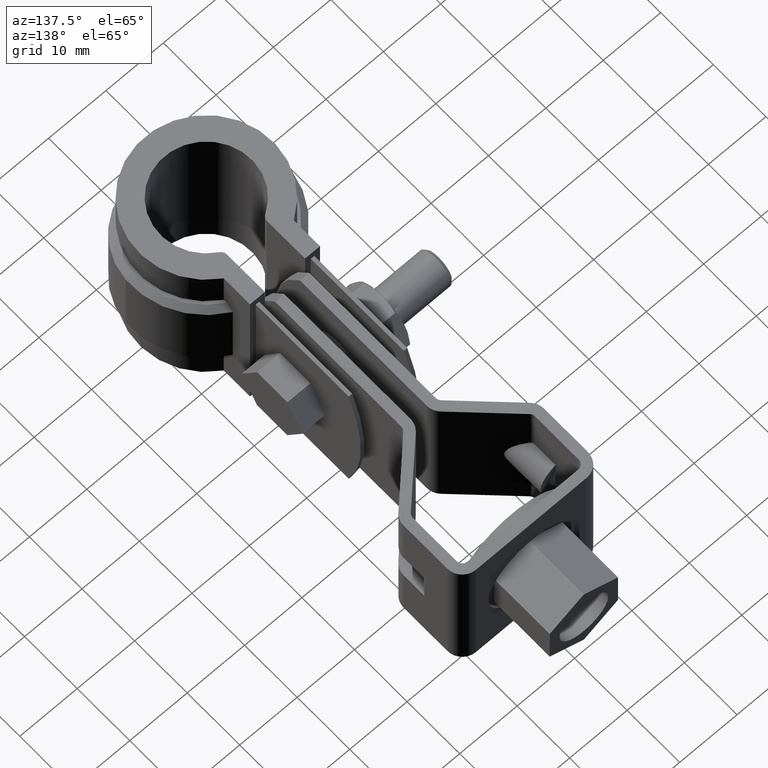
[diagram: clean part render]
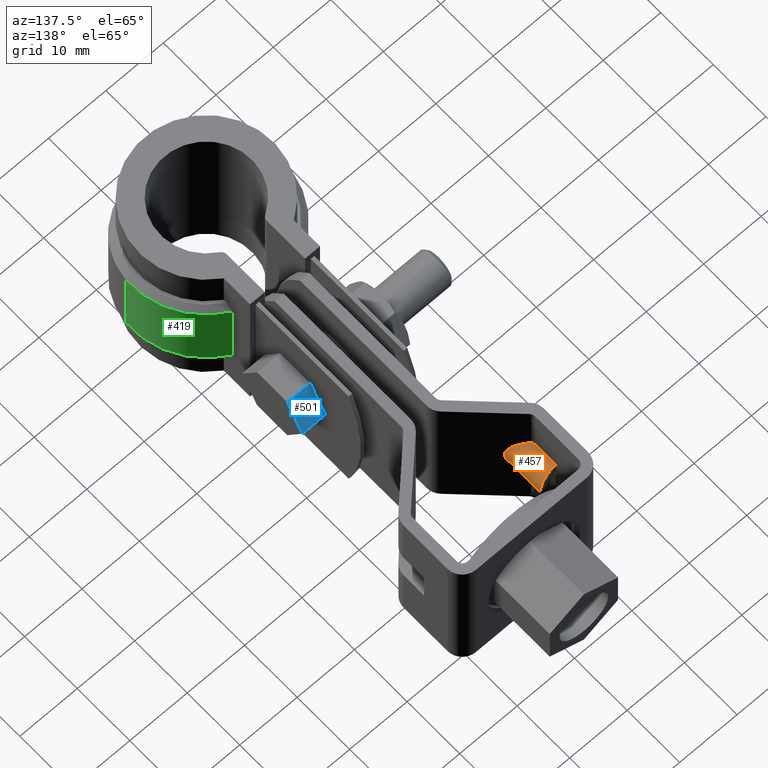
[diagram: same view with three faces highlighted in distinct colors, each labeled with its STEP entity id]
A machine part, auxiliary view with three faces highlighted in distinct colors.
Their STEP definitions:

[orange] entity #457 — the highlighted cylindrical surface (edge-blend (fillet) strip) has radius 4.25 mm, axis along (0, -1, 0).
#457 = ADVANCED_FACE( '', ( #822 ), #823, .T. );
#822 = FACE_OUTER_BOUND( '', #1848, .T. );
#823 = CYLINDRICAL_SURFACE( '', #1849, 4.24999999999996 );
#1848 = EDGE_LOOP( '', ( #4163, #4164, #4165, #4166, #4167, #4168 ) );
#1849 = AXIS2_PLACEMENT_3D( '', #4169, #4170, #4171 );
#4163 = ORIENTED_EDGE( '', *, *, #5134, .T. );
#4164 = ORIENTED_EDGE( '', *, *, #5135, .T. );
#4165 = ORIENTED_EDGE( '', *, *, #5136, .F. );
#4166 = ORIENTED_EDGE( '', *, *, #5137, .T. );
#4167 = ORIENTED_EDGE( '', *, *, #5138, .T. );
#4168 = ORIENTED_EDGE( '', *, *, #5139, .T. );
#4169 = CARTESIAN_POINT( '', ( -12.2499999999987, 44.7954761009190, -12.5000000006441 ) );
#4170 = DIRECTION( '', ( 1.50571936274857E-013, -1.00000000000000, 5.16559017782484E-012 ) );
#4171 = DIRECTION( '', ( -1.91706918336711E-013, 5.16559017782481E-012, 1.00000000000000 ) );
#5134 = EDGE_CURVE( '', #6017, #6018, #6019, .T. );
#5135 = EDGE_CURVE( '', #6018, #6020, #6021, .T. );
#5136 = EDGE_CURVE( '', #6022, #6020, #6023, .T. );
#5137 = EDGE_CURVE( '', #6022, #6024, #6025, .F. );
#5138 = EDGE_CURVE( '', #6024, #6026, #6027, .T. );
#5139 = EDGE_CURVE( '', #6026, #6017, #6028, .T. );
#6017 = VERTEX_POINT( '', #8550 );
#6018 = VERTEX_POINT( '', #8551 );
#6019 = B_SPLINE_CURVE_WITH_KNOTS( '', 3, ( #8552, #8553, #8554, #8555, #8556, #8557 ), .UNSPECIFIED., .F., .F., ( 4, 2, 4 ), ( 1.73472347597681E-018, 0.000404290461596237, 0.000808580923192473 ), .UNSPECIFIED. );
#6020 = VERTEX_POINT( '', #8558 );
#6021 = LINE( '', #8559, #8560 );
#6022 = VERTEX_POINT( '', #8561 );
#6023 = CIRCLE( '', #8562, 4.24999999999996 );
#6024 = VERTEX_POINT( '', #8563 );
#6025 = LINE( '', #8564, #8565 );
#6026 = VERTEX_POINT( '', #8566 );
#6027 = B_SPLINE_CURVE_WITH_KNOTS( '', 3, ( #8567, #8568, #8569, #8570, #8571, #8572 ), .UNSPECIFIED., .F., .F., ( 4, 2, 4 ), ( 0.000000000000000, 0.000404110423349694, 0.000808220846699388 ), .UNSPECIFIED. );
#6028 = ELLIPSE( '', #8573, 5.93756228945901, 4.24999999999996 );
#8550 = CARTESIAN_POINT( '', ( -10.3483238355293, 50.1754999052714, -16.3008062000835 ) );
#8551 = CARTESIAN_POINT( '', ( -10.6499999999989, 50.8912818697892, -16.4373214251972 ) );
#8552 = CARTESIAN_POINT( '', ( -10.3483238355293, 50.1754999052714, -16.3008062000835 ) );
#8553 = CARTESIAN_POINT( '', ( -10.4403809003163, 50.2653116716420, -16.3468655666214 ) );
#8554 = CARTESIAN_POINT( '', ( -10.5165797531519, 50.3747570099877, -16.3808533797815 ) );
#8555 = CARTESIAN_POINT( '', ( -10.6216014683278, 50.6197142242399, -16.4260778048407 ) );
#8556 = CARTESIAN_POINT( '', ( -10.6499999999988, 50.7545571963965, -16.4373214251965 ) );
#8557 = CARTESIAN_POINT( '', ( -10.6499999999989, 50.8912818697892, -16.4373214251972 ) );
#8558 = CARTESIAN_POINT( '', ( -10.6499999999994, 54.7954761008989, -16.4373214252174 ) );
#8559 = CARTESIAN_POINT( '', ( -10.6499999999972, 39.7954761008991, -16.4373214251399 ) );
#8560 = VECTOR( '', #9503, 1000.00000000000 );
#8561 = CARTESIAN_POINT( '', ( -10.6500000000011, 54.7954761009395, -8.56267857617343 ) );
#8562 = AXIS2_PLACEMENT_3D( '', #9504, #9505, #9506 );
#8563 = CARTESIAN_POINT( '', ( -10.6500000000005, 50.8912818698299, -8.56267857615325 ) );
#8564 = CARTESIAN_POINT( '', ( -10.6499999999989, 39.7954761009398, -8.56267857609594 ) );
#8565 = VECTOR( '', #9507, 1000.00000000000 );
#8566 = CARTESIAN_POINT( '', ( -10.3483238355309, 50.1754999053107, -8.69919380125951 ) );
#8567 = CARTESIAN_POINT( '', ( -10.6500000000005, 50.8912818698299, -8.56267857615325 ) );
#8568 = CARTESIAN_POINT( '', ( -10.6500000000005, 50.7546060670434, -8.56267857615255 ) );
#8569 = CARTESIAN_POINT( '', ( -10.6217333084687, 50.6202160421664, -8.57386902660188 ) );
#8570 = CARTESIAN_POINT( '', ( -10.5168996502029, 50.3753096785321, -8.61900528000483 ) );
#8571 = CARTESIAN_POINT( '', ( -10.4403731851323, 50.2653041446717, -8.65313829489954 ) );
#8572 = CARTESIAN_POINT( '', ( -10.3483238355309, 50.1754999053107, -8.69919380125951 ) );
#8573 = AXIS2_PLACEMENT_3D( '', #9508, #9509, #9510 );
#9503 = DIRECTION( '', ( -1.50571936274857E-013, 1.00000000000000, -5.16559017782484E-012 ) );
#9504 = CARTESIAN_POINT( '', ( -12.2500000000002, 54.7954761009190, -12.5000000006958 ) );
#9505 = DIRECTION( '', ( -1.50571936274857E-013, 1.00000000000000, -5.16559017782484E-012 ) );
#9506 = DIRECTION( '', ( -2.12931770278075E-013, 5.16559017782481E-012, 1.00000000000000 ) );
#9507 = DIRECTION( '', ( -1.50571936274857E-013, 1.00000000000000, -5.16559017782484E-012 ) );
#9508 = CARTESIAN_POINT( '', ( -12.2499999999998, 52.0307936384915, -12.5000000006815 ) );
#9509 = DIRECTION( '', ( 0.698323835530393, 0.715781964518610, -3.54885894932398E-012 ) );
#9510 = DIRECTION( '', ( -0.715781964518610, 0.698323835530393, -3.75954652225811E-012 ) );

[blue] entity #501 — the highlighted planar face has unit normal (0, -0.866, -0.5).
#501 = ADVANCED_FACE( '', ( #923 ), #924, .F. );
#923 = FACE_OUTER_BOUND( '', #1949, .T. );
#924 = PLANE( '', #1950 );
#1949 = EDGE_LOOP( '', ( #4514, #4515, #4516, #4517 ) );
#1950 = AXIS2_PLACEMENT_3D( '', #4518, #4519, #4520 );
#4514 = ORIENTED_EDGE( '', *, *, #5208, .T. );
#4515 = ORIENTED_EDGE( '', *, *, #5224, .F. );
#4516 = ORIENTED_EDGE( '', *, *, #5218, .F. );
#4517 = ORIENTED_EDGE( '', *, *, #5214, .T. );
#4518 = CARTESIAN_POINT( '', ( 9.10000000000008, 28.2289787932999, -12.5000000000002 ) );
#4519 = DIRECTION( '', ( 0.000000000000000, -0.866025403784435, -0.500000000000006 ) );
#4520 = DIRECTION( '', ( 0.000000000000000, 0.500000000000006, -0.866025403784435 ) );
#5208 = EDGE_CURVE( '', #6138, #6136, #6139, .T. );
#5214 = EDGE_CURVE( '', #6148, #6138, #6149, .T. );
#5218 = EDGE_CURVE( '', #6148, #6155, #6156, .T. );
#5224 = EDGE_CURVE( '', #6155, #6136, #6164, .T. );
#6136 = VERTEX_POINT( '', #8745 );
#6138 = VERTEX_POINT( '', #8748 );
#6139 = LINE( '', #8749, #8750 );
#6148 = VERTEX_POINT( '', #8763 );
#6149 = LINE( '', #8764, #8765 );
#6155 = VERTEX_POINT( '', #8772 );
#6156 = LINE( '', #8773, #8774 );
#6164 = LINE( '', #8787, #8788 );
#8745 = CARTESIAN_POINT( '', ( 5.10000000000008, 25.3422274473518, -7.50000000000016 ) );
#8748 = CARTESIAN_POINT( '', ( 5.10000000000008, 28.2289787932999, -12.5000000000002 ) );
#8749 = CARTESIAN_POINT( '', ( 5.10000000000008, 28.2289787932999, -12.5000000000002 ) );
#8750 = VECTOR( '', #9611, 1000.00000000000 );
#8763 = CARTESIAN_POINT( '', ( 9.10000000000008, 28.2289787932999, -12.5000000000002 ) );
#8764 = CARTESIAN_POINT( '', ( 9.10000000000008, 28.2289787932999, -12.5000000000002 ) );
#8765 = VECTOR( '', #9619, 1000.00000000000 );
#8772 = CARTESIAN_POINT( '', ( 9.10000000000008, 25.3422274473518, -7.50000000000016 ) );
#8773 = CARTESIAN_POINT( '', ( 9.10000000000008, 28.2289787932999, -12.5000000000002 ) );
#8774 = VECTOR( '', #9627, 1000.00000000000 );
#8787 = CARTESIAN_POINT( '', ( 9.10000000000008, 25.3422274473518, -7.50000000000016 ) );
#8788 = VECTOR( '', #9633, 1000.00000000000 );
#9611 = DIRECTION( '', ( 0.000000000000000, -0.499999999999994, 0.866025403784442 ) );
#9619 = DIRECTION( '', ( -1.00000000000000, 0.000000000000000, 0.000000000000000 ) );
#9627 = DIRECTION( '', ( 0.000000000000000, -0.499999999999994, 0.866025403784442 ) );
#9633 = DIRECTION( '', ( -1.00000000000000, 0.000000000000000, 0.000000000000000 ) );

[green] entity #419 — the highlighted cylindrical surface (partial cylindrical patch) has radius 13.185 mm, axis along (0, 0, -1).
#419 = ADVANCED_FACE( '', ( #741 ), #742, .T. );
#741 = FACE_OUTER_BOUND( '', #1767, .T. );
#742 = CYLINDRICAL_SURFACE( '', #1768, 13.1850000000000 );
#1767 = EDGE_LOOP( '', ( #3850, #3851, #3852, #3853 ) );
#1768 = AXIS2_PLACEMENT_3D( '', #3854, #3855, #3856 );
#3850 = ORIENTED_EDGE( '', *, *, #4842, .T. );
#3851 = ORIENTED_EDGE( '', *, *, #5020, .T. );
#3852 = ORIENTED_EDGE( '', *, *, #5038, .F. );
#3853 = ORIENTED_EDGE( '', *, *, #5011, .T. );
#3854 = CARTESIAN_POINT( '', ( 8.67361737988404E-016, 1.73472347597681E-015, -20.0000000000000 ) );
#3855 = DIRECTION( '', ( 0.000000000000000, 0.000000000000000, -1.00000000000000 ) );
#3856 = DIRECTION( '', ( 0.386803185437998, 0.922162293598593, 0.000000000000000 ) );
#4842 = EDGE_CURVE( '', #5528, #5526, #5529, .T. );
#5011 = EDGE_CURVE( '', #5817, #5528, #5818, .T. );
#5020 = EDGE_CURVE( '', #5526, #5824, #5830, .F. );
#5038 = EDGE_CURVE( '', #5817, #5824, #5857, .T. );
#5526 = VERTEX_POINT( '', #7205 );
#5528 = VERTEX_POINT( '', #7210 );
#5529 = LINE( '', #7211, #7212 );
#5817 = VERTEX_POINT( '', #8255 );
#5818 = CIRCLE( '', #8256, 13.1850000000000 );
#5824 = VERTEX_POINT( '', #8263 );
#5830 = CIRCLE( '', #8270, 13.1850000000000 );
#5857 = LINE( '', #8303, #8304 );
#7205 = CARTESIAN_POINT( '', ( 6.09999999999997, 11.6890643338122, -6.00000000000000 ) );
#7210 = CARTESIAN_POINT( '', ( 6.09999999999997, 11.6890643338122, -19.0000000000000 ) );
#7211 = CARTESIAN_POINT( '', ( 6.09999999999997, 11.6890643338122, -20.0000000000000 ) );
#7212 = VECTOR( '', #9110, 1000.00000000000 );
#8255 = CARTESIAN_POINT( '', ( 13.1454778625978, -1.02011605415861, -19.0000000000000 ) );
#8256 = AXIS2_PLACEMENT_3D( '', #9284, #9285, #9286 );
#8263 = CARTESIAN_POINT( '', ( 13.1454778625978, -1.02011605415861, -6.00000000000000 ) );
#8270 = AXIS2_PLACEMENT_3D( '', #9307, #9308, #9309 );
#8303 = CARTESIAN_POINT( '', ( 13.1454778625978, -1.02011605415861, -20.0000000000000 ) );
#8304 = VECTOR( '', #9349, 1000.00000000000 );
#9110 = DIRECTION( '', ( 0.000000000000000, 0.000000000000000, 1.00000000000000 ) );
#9284 = CARTESIAN_POINT( '', ( 8.67361737988404E-016, 1.73472347597681E-015, -19.0000000000000 ) );
#9285 = DIRECTION( '', ( 0.000000000000000, 0.000000000000000, 1.00000000000000 ) );
#9286 = DIRECTION( '', ( 1.00000000000000, 0.000000000000000, 0.000000000000000 ) );
#9307 = CARTESIAN_POINT( '', ( 8.67361737988404E-016, 1.73472347597681E-015, -6.00000000000000 ) );
#9308 = DIRECTION( '', ( 0.000000000000000, 0.000000000000000, 1.00000000000000 ) );
#9309 = DIRECTION( '', ( 1.00000000000000, 0.000000000000000, 0.000000000000000 ) );
#9349 = DIRECTION( '', ( 0.000000000000000, 0.000000000000000, 1.00000000000000 ) );